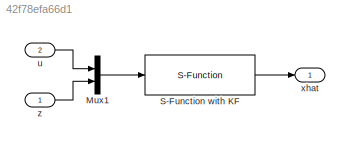
MODEL slx_42f78efa66d1
KIND model
CONFIG AbsTol = auto
CONFIG FixedStep = auto
CONFIG MaxStep = auto
CONFIG MinStep = auto
CONFIG RelTol = 1e-3
CONFIG SampleTimeConstraint = Unconstrained
CONFIG Solver = VariableStepAuto
CONFIG SolverMode = Auto
CONFIG SolverName = VariableStepAuto
CONFIG StartTime = 0.0
CONFIG StopTime = 10.0
BLOCK [Mux] Mux1
  DisplayOption = bar
  Inputs = 2
  Ports = [2, 1]
BLOCK [S-Function] S-Function with KF
  EnableBusSupport = off
  FunctionName = KF_sfunc
  Parameters = fset
  Ports = [1, 1]
  SFunctionDeploymentMode = off
BLOCK [Inport] u
  IconDisplay = Port number
  Port = 2
  PortDimensions = fset.nControlsignals
BLOCK [Outport] xhat
  IconDisplay = Port number
BLOCK [Inport] z
  IconDisplay = Port number
  PortDimensions = fset.nMeasuredStates
LINE Mux1:1 -> S-Function with KF:1
LINE S-Function with KF:1 -> xhat:1
LINE u:1 -> Mux1:1
LINE z:1 -> Mux1:2
